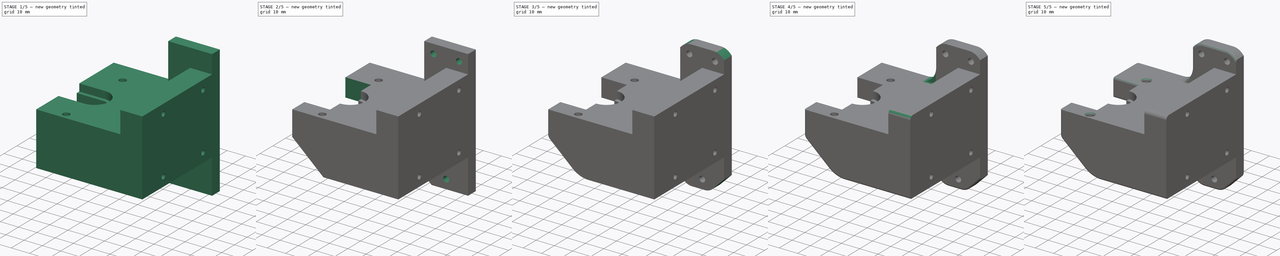
[diagram: build sequence overview — one tinted view per stage of 5, left to right]
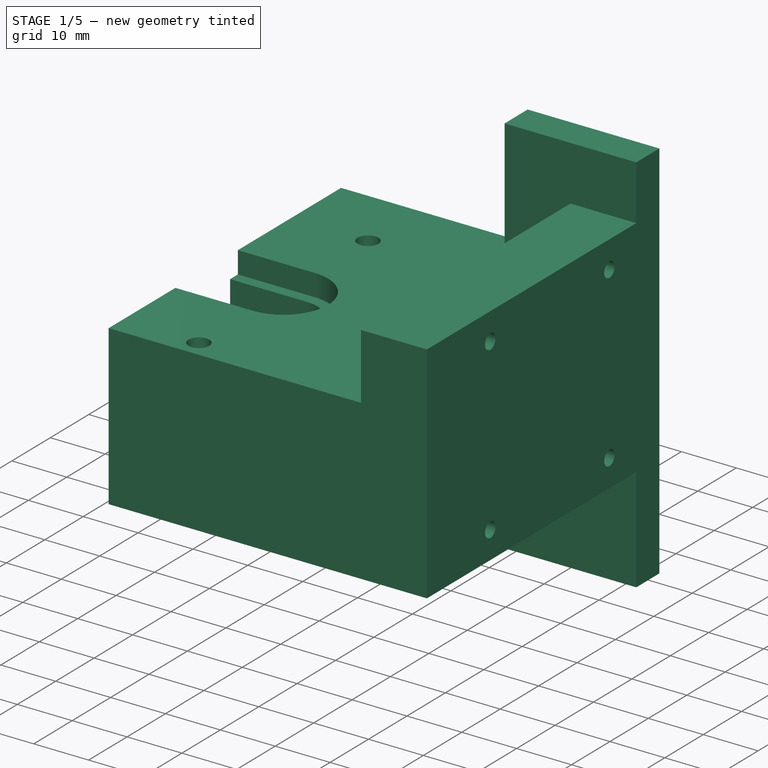
[diagram: stage 1 of 5 — iso view after this stage's code; geometry added in this stage tinted green]
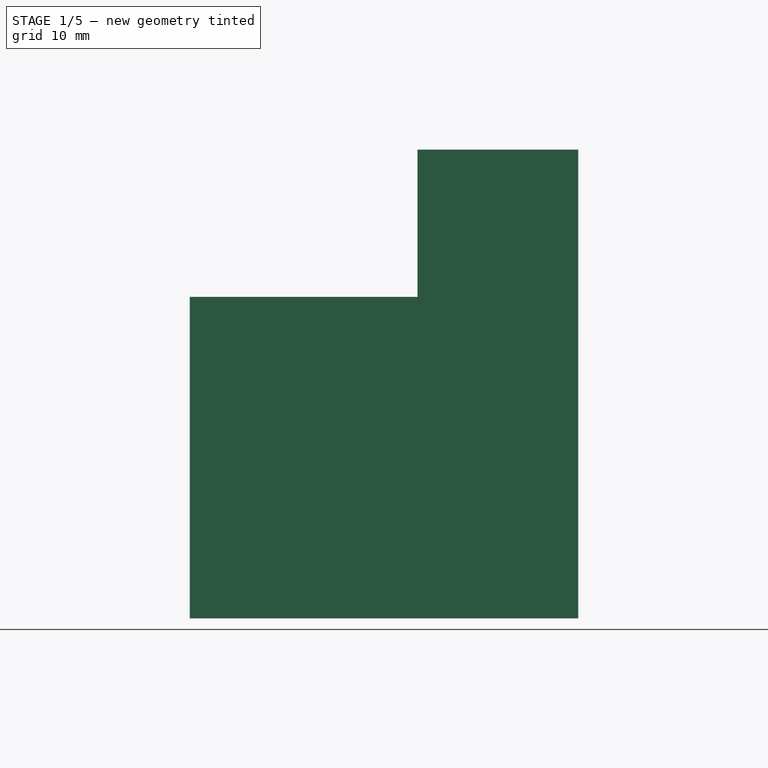
[diagram: stage 1 of 5 — front view after this stage's code; geometry added in this stage tinted green]
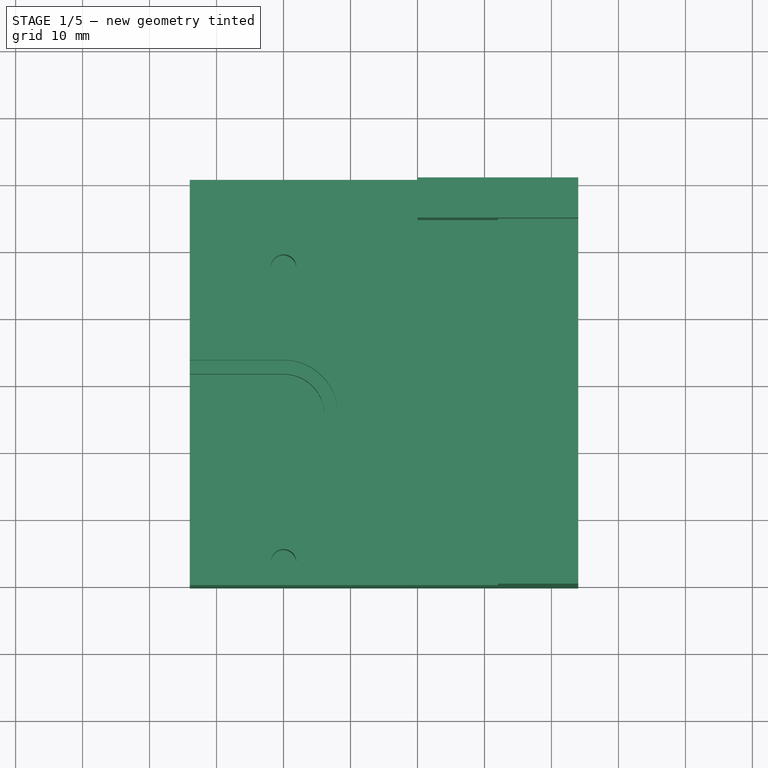
[diagram: stage 1 of 5 — top view after this stage's code; geometry added in this stage tinted green]
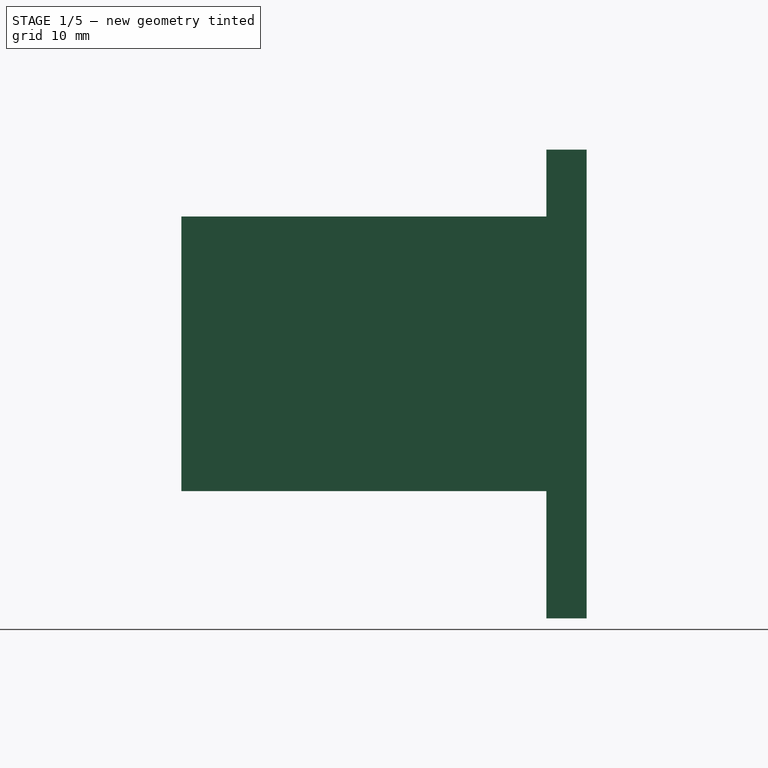
[diagram: stage 1 of 5 — right view after this stage's code; geometry added in this stage tinted green]
FCSTD DOCUMENT  (FreeCAD 0.19R)
Label: head9
License: All rights reserved
LicenseURL: http://en.wikipedia.org/wiki/All_rights_reserved
objects: PartDesign::Fillet×15, Sketcher::SketchObject×13, PartDesign::Pocket×12, PartDesign::Chamfer×5, PartDesign::Pad×1, PartDesign::Body×1
note: 80 computed .brp shape members not serialized (recipe doc carries the construction recipe); baked Part::Feature solids carry a one-line shape summary decoded from their .brp

FEATURE [Sketcher::SketchObject] Sketch
  FullyConstrained = true
  MapMode = 5
  Support = -> [XY_Plane]
  sketch-geometry (5):
    g0: LineSegment StartX=0 StartY=0 StartZ=0 EndX=44 EndY=0 EndZ=0
    g1: LineSegment StartX=-14 StartY=0 StartZ=0 EndX=0 EndY=0 EndZ=0
    g2: LineSegment StartX=-14 StartY=0 StartZ=0 EndX=-14 EndY=-60.5 EndZ=0
    g3: LineSegment StartX=-14 StartY=-60.5 StartZ=0 EndX=44 EndY=-60.5 EndZ=0
    g4: LineSegment StartX=44 StartY=-60.5 StartZ=0 EndX=44 EndY=0 EndZ=0
  constraints (14):
    c: Coincident(g-1,g0)
    c: PointOnObject(g0,g-1)
    c: PointOnObject(g1,g-1)
    c: Coincident(g1,g0)
    c: Coincident(g1,g2)
    c: Vertical(g2)
    c: Coincident(g2,g3)
    c: Horizontal(g3)
    c: Coincident(g3,g4)
    c: Coincident(g4,g0)
    c: Vertical(g4)
    c: Distance(g4) = 60.5
    c: DistanceX(g0) = 44
    c: DistanceX(g1) = -14
FEATURE [PartDesign::Pad] Pad
  Direction = (1,1,1)
  Length = 70
  Length2 = 100
  Profile = -> Sketch
  Type = 0
FEATURE [Sketcher::SketchObject] Sketch002
  FullyConstrained = false
  MapMode = 5
  Placement = pos=(0,0,70) rot=(0,0,1;0rad)
  Support = -> [Pad]
  sketch-geometry (6):
    g0: LineSegment StartX=32 StartY=-6 StartZ=0 EndX=32 EndY=-65.096 EndZ=0
    g1: LineSegment StartX=32 StartY=-65.096 StartZ=0 EndX=-40.7834 EndY=-65.096 EndZ=0
    g2: LineSegment StartX=-40.7834 StartY=-65.096 StartZ=0 EndX=-40.7834 EndY=12.9948 EndZ=0
    g3: LineSegment StartX=-40.7834 StartY=12.9948 StartZ=0 EndX=20 EndY=12.9948 EndZ=0
    g4: LineSegment StartX=20 StartY=12.9948 StartZ=0 EndX=20 EndY=-6 EndZ=0
    g5: LineSegment StartX=20 StartY=-6 StartZ=0 EndX=32 EndY=-6 EndZ=0
  constraints (15):
    c: Coincident(g0,g1)
    c: Coincident(g1,g2)
    c: Horizontal(g1)
    c: Vertical(g0)
    c: Vertical(g2)
    c: DistanceX(g0) = 32
    c: DistanceY(g0) = -6
    c: Coincident(g2,g3)
    c: Horizontal(g3)
    c: Coincident(g3,g4)
    c: Coincident(g4,g5)
    c: Coincident(g5,g0)
    c: Horizontal(g5)
    c: Vertical(g4)
    c: DistanceX(g3) = 20
FEATURE [PartDesign::Pocket] Pocket
  BaseFeature = -> Pad
  Length = 22
  Length2 = 100
  Profile = -> Sketch002
  Type = 0
FEATURE [Sketcher::SketchObject] Sketch008  label="pcbnotches"
  FullyConstrained = false
  MapMode = 5
  Placement = pos=(44,0,0) rot=(0.57735,0.57735,0.57735;2.0944rad)
  Support = -> [Pocket]
  sketch-geometry (8):
    g0: LineSegment StartX=-67.659 StartY=19 StartZ=0 EndX=-6 EndY=19 EndZ=0
    g1: LineSegment StartX=-6 StartY=19 StartZ=0 EndX=-6 EndY=-22.4626 EndZ=0
    g2: LineSegment StartX=-6 StartY=-22.4626 StartZ=0 EndX=-67.659 EndY=-22.4626 EndZ=0
    g3: LineSegment StartX=-67.659 StartY=-22.4626 StartZ=0 EndX=-67.659 EndY=19 EndZ=0
    g4: LineSegment StartX=-66.332 StartY=73.6841 StartZ=0 EndX=-6 EndY=73.6841 EndZ=0
    g5: LineSegment StartX=-6 StartY=73.6841 StartZ=0 EndX=-6 EndY=60 EndZ=0
    g6: LineSegment StartX=-6 StartY=60 StartZ=0 EndX=-66.332 EndY=60 EndZ=0
    g7: LineSegment StartX=-66.332 StartY=60 StartZ=0 EndX=-66.332 EndY=73.6841 EndZ=0
  constraints (20):
    c: Coincident(g0,g1)
    c: Coincident(g1,g2)
    c: Coincident(g2,g3)
    c: Coincident(g3,g0)
    c: Horizontal(g0)
    c: Horizontal(g2)
    c: Vertical(g1)
    c: Vertical(g3)
    c: DistanceY(g0) = 19
    c: Coincident(g4,g5)
    c: Coincident(g5,g6)
    c: Coincident(g6,g7)
    c: Coincident(g7,g4)
    c: Horizontal(g4)
    c: Horizontal(g6)
    c: Vertical(g5)
    c: Vertical(g7)
    c: DistanceX(g4) = -6
    c: DistanceY(g5) = 60
    c: DistanceX(g0) = -6
FEATURE [PartDesign::Pocket] Pocket001
  BaseFeature = -> Pocket
  Length = 76
  Length2 = 100
  Profile = -> Sketch008
  Type = 0
FEATURE [Sketcher::SketchObject] Sketch003  label="extredureholes"
  FullyConstrained = true
  MapMode = 5
  Placement = pos=(0,0,48) rot=(0,0,1;0rad)
  Support = -> [Pocket001]
  sketch-geometry (3):
    g0: Circle CenterX=0 CenterY=-13 CenterZ=0 NormalX=0 NormalY=0 NormalZ=1 AngleXU=0 Radius=1.9
    g1: Circle CenterX=8.179e-13 CenterY=-57 CenterZ=0 NormalX=0 NormalY=0 NormalZ=1 AngleXU=0 Radius=1.9
    g2: LineSegment StartX=-14.87 StartY=-35 StartZ=0 EndX=14.87 EndY=-35 EndZ=0
  constraints (8):
    c: Distance(g1,g0) = 44
    c: Diameter(g1) = 3.8
    c: PointOnObject(g0,g-2)
    c: Symmetric(g2,g2,g-2)
    c: Distance(g2) = 29.74
    c: Symmetric(g1,g0,g2)
    c: DistanceY(g2) = -35
    c: Diameter(g0) = 3.8
FEATURE [PartDesign::Pocket] Pocket002
  BaseFeature = -> Pocket001
  Length = 12
  Length2 = 100
  Profile = -> Sketch003
  Type = 0
FEATURE [Sketcher::SketchObject] Sketch004  label="topNotch"
  FullyConstrained = true
  MapMode = 5
  Placement = pos=(0,0,48) rot=(0,0,1;0rad)
  Support = -> [Pocket002]
  sketch-geometry (4):
    g0: ArcOfCircle CenterX=0 CenterY=-35 CenterZ=0 NormalX=0 NormalY=0 NormalZ=1 AngleXU=0 Radius=8.125 StartAngle=4.71239 EndAngle=7.85398
    g1: LineSegment StartX=-1.5e-15 StartY=-43.125 StartZ=0 EndX=-25 EndY=-43.125 EndZ=0
    g2: LineSegment StartX=-25 StartY=-43.125 StartZ=0 EndX=-25 EndY=-26.875 EndZ=0
    g3: LineSegment StartX=-25 StartY=-26.875 StartZ=0 EndX=-2.629e-13 EndY=-26.875 EndZ=0
  constraints (11):
    c: PointOnObject(g0,g-2)
    c: Diameter(g0) = 16.25
    c: DistanceY(g0) = -35
    c: Coincident(g1,g2)
    c: Coincident(g2,g3)
    c: Distance(g3) = 25
    c: Tangent(g3,g0) = 1.5708
    c: Tangent(g1,g0) = 1.5708
    c: Horizontal(g3)
    c: Horizontal(g1)
    c: Vertical(g2)
FEATURE [PartDesign::Pocket] Pocket003
  BaseFeature = -> Pocket002
  Length = 4
  Length2 = 100
  Profile = -> Sketch004
  Type = 0
FEATURE [Sketcher::SketchObject] Sketch018  label="innergroove"
  FullyConstrained = true
  MapMode = 5
  Placement = pos=(0,0,44) rot=(0,0,1;0rad)
  Support = -> [Pocket003]
  sketch-geometry (4):
    g0: ArcOfCircle CenterX=0 CenterY=-35 CenterZ=0 NormalX=0 NormalY=0 NormalZ=1 AngleXU=0 Radius=6.1 StartAngle=4.71239 EndAngle=7.85398
    g1: LineSegment StartX=-1.1e-15 StartY=-41.1 StartZ=0 EndX=-50 EndY=-41.1 EndZ=0
    g2: LineSegment StartX=1.9e-15 StartY=-28.9 StartZ=0 EndX=-50 EndY=-28.9 EndZ=0
    g3: LineSegment StartX=-50 StartY=-41.1 StartZ=0 EndX=-50 EndY=-28.9 EndZ=0
  constraints (11):
    c: PointOnObject(g0,g-2)
    c: Coincident(g3,g1)
    c: Coincident(g3,g2)
    c: Tangent(g1,g0) = 1.5708
    c: Tangent(g2,g0) = -1.5708
    c: DistanceY(g0) = -35
    c: Diameter(g0) = 12.2
    c: Distance(g1) = 50
    c: Vertical(g3)
    c: Horizontal(g1)
    c: Horizontal(g2)
FEATURE [PartDesign::Pocket] Pocket004
  BaseFeature = -> Pocket003
  Length = 6
  Length2 = 100
  Profile = -> Sketch018
  Type = 0
FEATURE [Sketcher::SketchObject] Sketch009  label="PCBholes"
  FullyConstrained = true
  MapMode = 5
  Placement = pos=(44,0,0) rot=(0.57735,0.57735,0.57735;2.0944rad)
  Support = -> [Pocket004]
  sketch-geometry (5):
    g0: Circle CenterX=-44 CenterY=55 CenterZ=0 NormalX=0 NormalY=0 NormalZ=1 AngleXU=0 Radius=1.35
    g1: Circle CenterX=-13 CenterY=24 CenterZ=0 NormalX=0 NormalY=0 NormalZ=1 AngleXU=0 Radius=1.35
    g2: LineSegment StartX=-44 StartY=55 StartZ=0 EndX=-13 EndY=24 EndZ=0
    g3: Circle CenterX=-13 CenterY=55 CenterZ=0 NormalX=0 NormalY=0 NormalZ=1 AngleXU=0 Radius=1.35
    g4: Circle CenterX=-44 CenterY=24 CenterZ=0 NormalX=0 NormalY=0 NormalZ=1 AngleXU=0 Radius=1.35
  constraints (14):
    c: Coincident(g2,g0)
    c: Coincident(g2,g1)
    c: Angle(g2) = -0.785398
    c: DistanceX(g1) = -13
    c: DistanceY(g1) = 24
    c: Diameter(g4) = 2.7
    c: Equal(g4,g0)
    c: Equal(g4,g3)
    c: Equal(g4,g1)
    c: DistanceY(g4,g0) = 31
    c: DistanceX(g0,g3) = 31
    c: DistanceX(g4,g1) = 31
    c: DistanceY(g4) = 24
    c: DistanceY(g1,g3) = 31
FEATURE [PartDesign::Pocket] Pocket005
  BaseFeature = -> Pocket004
  Length = 10
  Length2 = 100
  Profile = -> Sketch009
  Type = 0
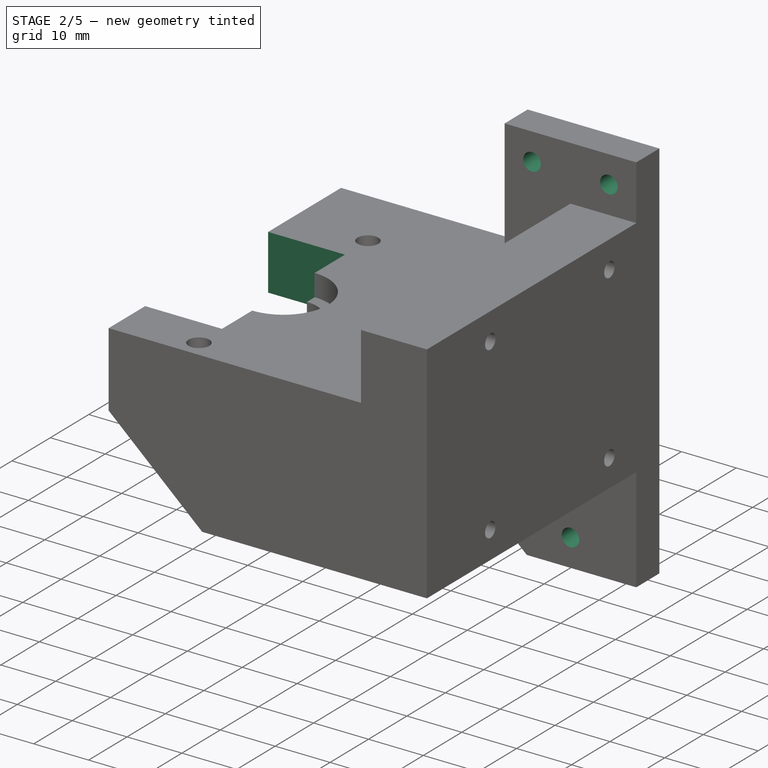
[diagram: stage 2 of 5 — iso view after this stage's code; geometry added in this stage tinted green]
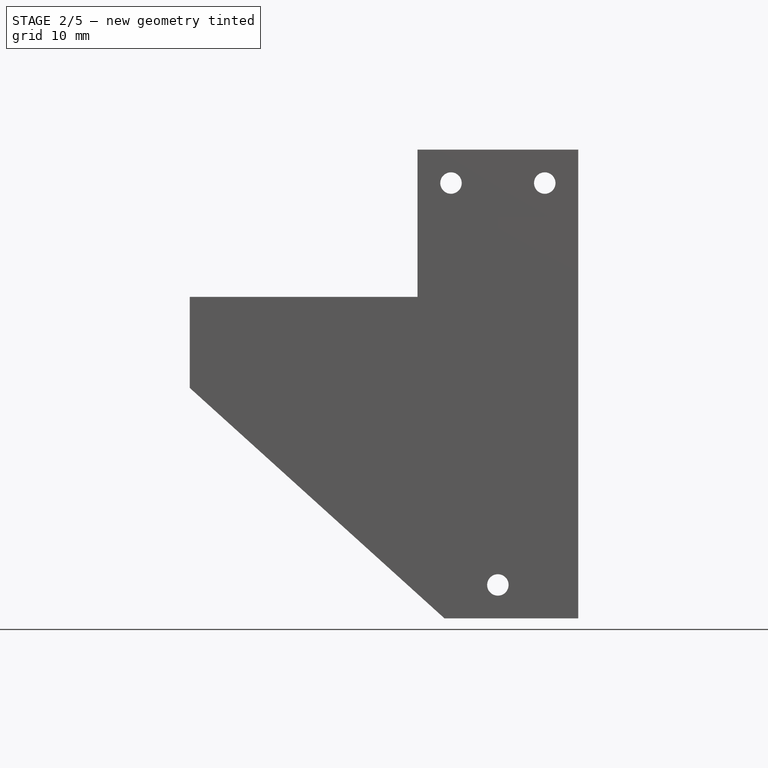
[diagram: stage 2 of 5 — front view after this stage's code; geometry added in this stage tinted green]
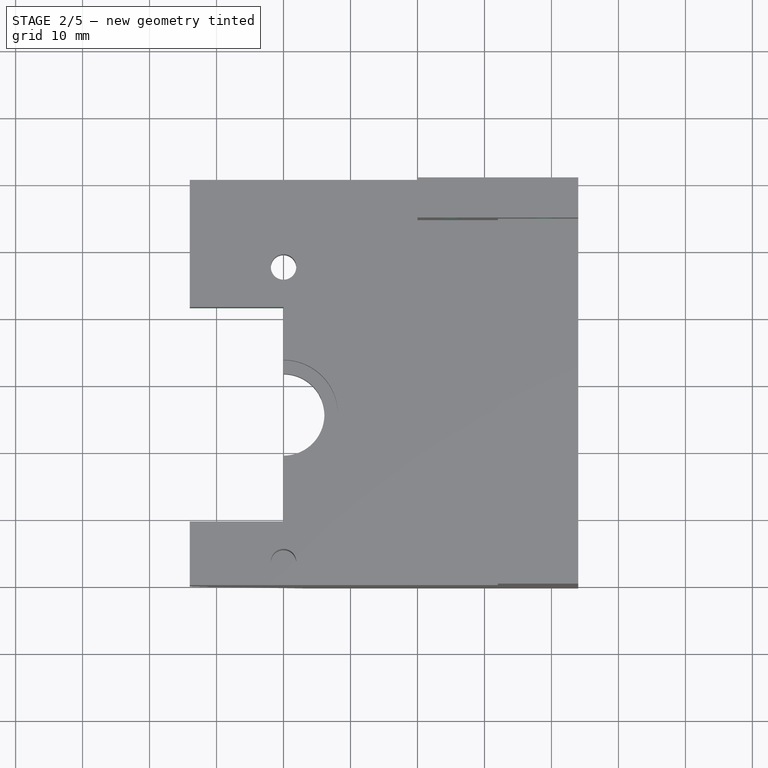
[diagram: stage 2 of 5 — top view after this stage's code; geometry added in this stage tinted green]
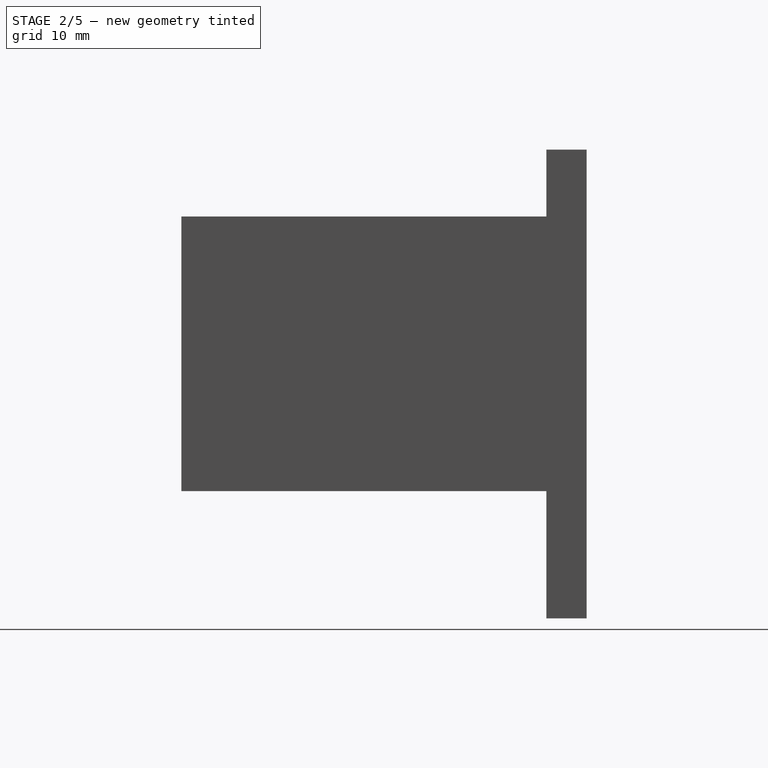
[diagram: stage 2 of 5 — right view after this stage's code; geometry added in this stage tinted green]
FEATURE [Sketcher::SketchObject] Sketch030
  FullyConstrained = false
  MapMode = 5
  Placement = pos=(0,0,48) rot=(0,0,1;0rad)
  Support = -> [Pocket005]
  sketch-geometry (5):
    g0: LineSegment StartX=-28.769 StartY=-19 StartZ=0 EndX=0 EndY=-19 EndZ=0
    g1: LineSegment StartX=0 StartY=-19 StartZ=0 EndX=0 EndY=-51 EndZ=0
    g2: LineSegment StartX=0 StartY=-51 StartZ=0 EndX=-28.769 EndY=-51 EndZ=0
    g3: LineSegment StartX=-28.769 StartY=-51 StartZ=0 EndX=-28.769 EndY=-19 EndZ=0
    g4: LineSegment StartX=-7.77915 StartY=-35 StartZ=0 EndX=15.2351 EndY=-35 EndZ=0
  constraints (12):
    c: Coincident(g0,g1)
    c: Coincident(g1,g2)
    c: Coincident(g2,g3)
    c: Coincident(g3,g0)
    c: Horizontal(g0)
    c: Horizontal(g2)
    c: Vertical(g1)
    c: Vertical(g3)
    c: PointOnObject(g1,g-2)
    c: Distance(g1) = 32
    c: Symmetric(g0,g1,g4)
    c: DistanceY(g4) = -35
FEATURE [PartDesign::Pocket] Pocket006
  BaseFeature = -> Pocket005
  Length = 5
  Length2 = 100
  Profile = -> Sketch030
  Type = 1
FEATURE [Sketcher::SketchObject] Sketch031
  FullyConstrained = false
  MapMode = 5
  Placement = pos=(-14,0,0) rot=(0.57735,-0.57735,-0.57735;2.0944rad)
  Support = -> [Pocket006]
  sketch-geometry (4):
    g0: LineSegment StartX=6.1 StartY=38 StartZ=0 EndX=52.7193 EndY=38 EndZ=0
    g1: LineSegment StartX=52.7193 StartY=38 StartZ=0 EndX=52.7193 EndY=2.95128 EndZ=0
    g2: LineSegment StartX=52.7193 StartY=2.95128 StartZ=0 EndX=6.1 EndY=2.95128 EndZ=0
    g3: LineSegment StartX=6.1 StartY=2.95128 StartZ=0 EndX=6.1 EndY=38 EndZ=0
  constraints (10):
    c: Coincident(g0,g1)
    c: Coincident(g1,g2)
    c: Coincident(g2,g3)
    c: Coincident(g3,g0)
    c: Horizontal(g0)
    c: Horizontal(g2)
    c: Vertical(g1)
    c: Vertical(g3)
    c: DistanceX(g0) = 6.1
    c: DistanceY(g0) = 38
FEATURE [PartDesign::Pocket] Pocket007
  BaseFeature = -> Pocket006
  Length = 36
  Length2 = 100
  Profile = -> Sketch031
  Type = 0
FEATURE [Sketcher::SketchObject] Sketch032
  ExternalGeometry = -> [Pocket007]
  FullyConstrained = true
  MapMode = 5
  Placement = pos=(-14,0,0) rot=(0.57735,-0.57735,-0.57735;2.0944rad)
  Support = -> [Pocket007]
  sketch-geometry (2):
    g0: Circle CenterX=4 CenterY=44 CenterZ=0 NormalX=0 NormalY=0 NormalZ=1 AngleXU=0 Radius=1.9
    g1: Circle CenterX=55 CenterY=44 CenterZ=0 NormalX=0 NormalY=0 NormalZ=1 AngleXU=0 Radius=1.9
  constraints (6):
    c: Diameter(g0) = 3.8
    c: DistanceX(g0) = 4
    c: DistanceY(g0) = 44
    c: Diameter(g1) = 3.8
    c: DistanceY(g1) = 44
    c: DistanceX(g1) = 55
FEATURE [PartDesign::Pocket] Pocket008
  BaseFeature = -> Pocket007
  Length = 10
  Length2 = 100
  Profile = -> Sketch032
  Type = 0
FEATURE [Sketcher::SketchObject] Sketch013  label="groovescrews"
  FullyConstrained = false
  MapMode = 5
  Placement = pos=(0,0,0) rot=(0.57735,-0.57735,-0.57735;2.0944rad)
  Support = -> [Pocket008]
  sketch-geometry (3):
    g0: Circle CenterX=24 CenterY=42 CenterZ=0 NormalX=0 NormalY=0 NormalZ=1 AngleXU=0 Radius=1.9
    g1: Circle CenterX=46 CenterY=42 CenterZ=0 NormalX=0 NormalY=0 NormalZ=1 AngleXU=0 Radius=1.9
    g2: LineSegment StartX=35 StartY=87.2769 StartZ=0 EndX=35 EndY=69.6255 EndZ=0
  constraints (6):
    c: Distance(g1,g0) = 22
    c: Diameter(g1) = 3.8
    c: Equal(g1,g0)
    c: Vertical(g2)
    c: Symmetric(g1,g0,g2)
    c: DistanceX(g2) = 35
FEATURE [PartDesign::Pocket] Pocket009
  BaseFeature = -> Pocket008
  Length = 16
  Length2 = 100
  Profile = -> Sketch013
  Type = 0
FEATURE [Sketcher::SketchObject] Sketch010  label="mountholes"
  FullyConstrained = true
  MapMode = 5
  Placement = pos=(0,0,0) rot=(0,0.707107,0.707107;3.14159rad)
  Support = -> [Pocket009]
  sketch-geometry (3):
    g0: Circle CenterX=-32 CenterY=5 CenterZ=0 NormalX=0 NormalY=0 NormalZ=1 AngleXU=0 Radius=1.6
    g1: Circle CenterX=-39 CenterY=65 CenterZ=0 NormalX=0 NormalY=0 NormalZ=1 AngleXU=0 Radius=1.6
    g2: Circle CenterX=-25 CenterY=65 CenterZ=0 NormalX=0 NormalY=0 NormalZ=1 AngleXU=0 Radius=1.6
  constraints (9):
    c: Diameter(g0) = 3.2
    c: Equal(g0,g2)
    c: Equal(g0,g1)
    c: DistanceX(g0) = -32
    c: Distance(g1,g2) = 14
    c: DistanceX(g2) = -25
    c: DistanceY(g0) = 5
    c: DistanceY(g2) = 65
    c: DistanceY(g1) = 65
FEATURE [PartDesign::Pocket] Pocket010
  BaseFeature = -> Pocket009
  Length = 7
  Length2 = 100
  Profile = -> Sketch010
  Type = 0
FEATURE [Sketcher::SketchObject] Sketch033  label="ANgler"
  FullyConstrained = false
  MapMode = 5
  Placement = pos=(0,0,0) rot=(0,0.707107,0.707107;3.14159rad)
  Support = -> [Pocket010]
  sketch-geometry (3):
    g0: LineSegment StartX=21.9958 StartY=41.6537 StartZ=0 EndX=-34.9081 EndY=-9.83073 EndZ=0
    g1: LineSegment StartX=21.9958 StartY=41.6537 StartZ=0 EndX=21.9958 EndY=-12.4114 EndZ=0
    g2: LineSegment StartX=21.9958 StartY=-12.4114 StartZ=0 EndX=-34.9081 EndY=-9.83073 EndZ=0
  constraints (4):
    c: Coincident(g0,g1)
    c: Vertical(g1)
    c: Coincident(g1,g2)
    c: Coincident(g2,g0)
FEATURE [PartDesign::Pocket] Pocket011
  BaseFeature = -> Pocket010
  Length = 5
  Length2 = 100
  Profile = -> Sketch033
  Type = 1
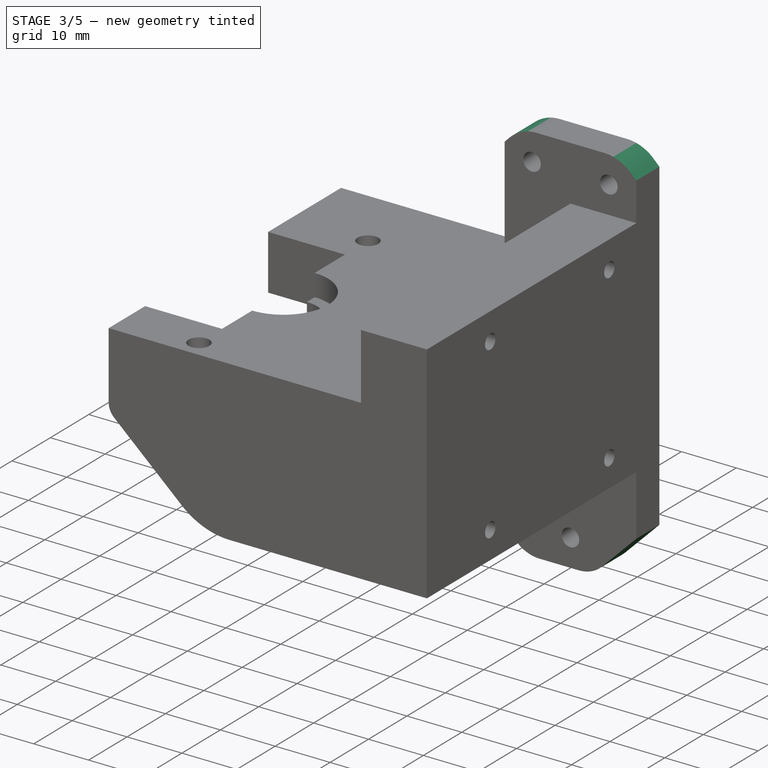
[diagram: stage 3 of 5 — iso view after this stage's code; geometry added in this stage tinted green]
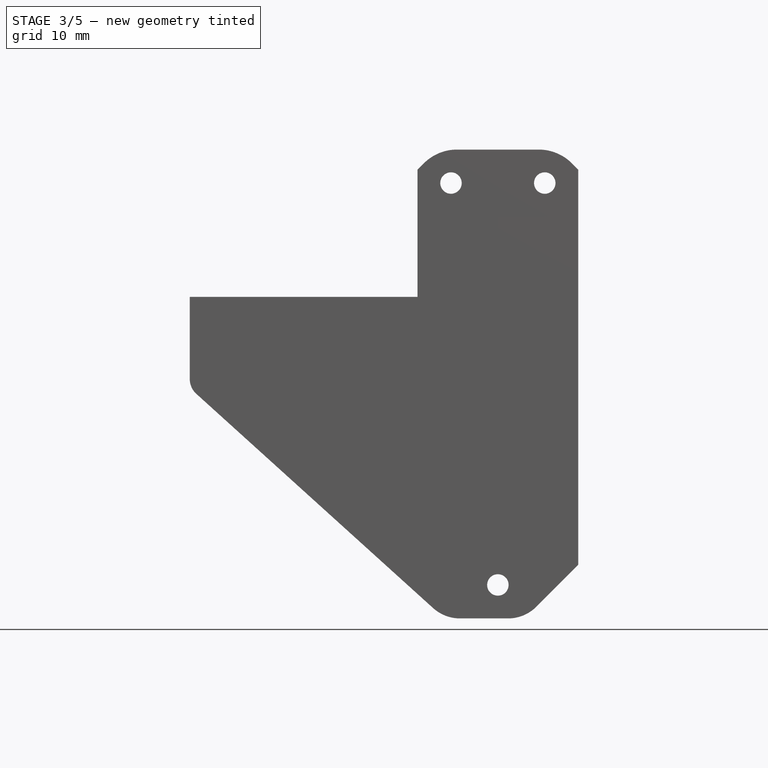
[diagram: stage 3 of 5 — front view after this stage's code; geometry added in this stage tinted green]
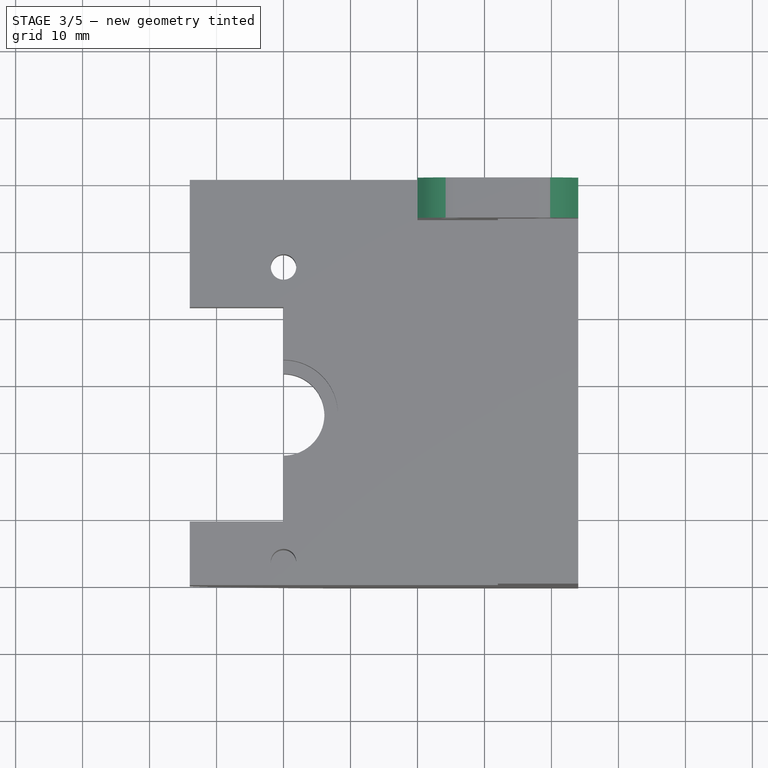
[diagram: stage 3 of 5 — top view after this stage's code; geometry added in this stage tinted green]
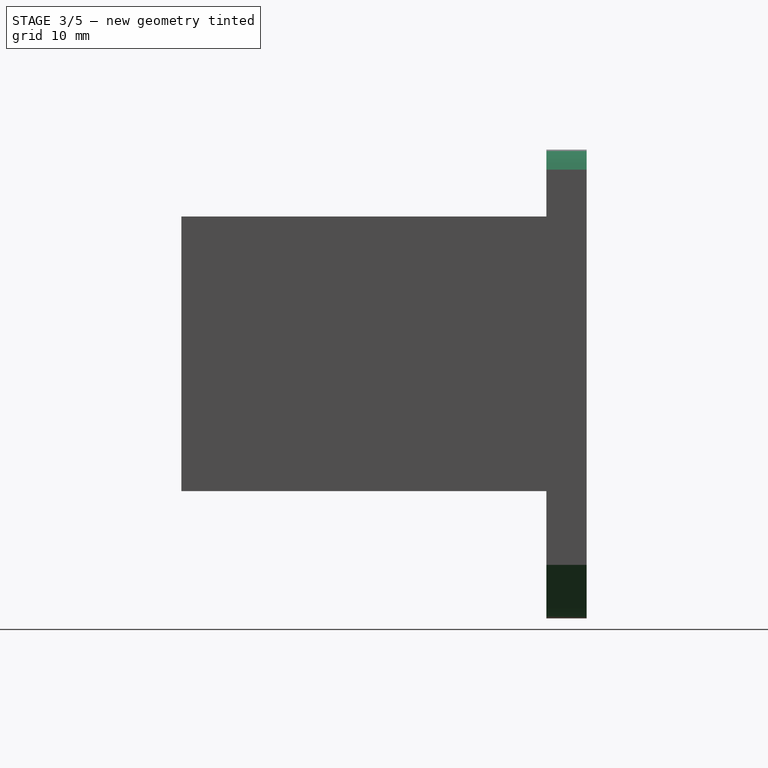
[diagram: stage 3 of 5 — right view after this stage's code; geometry added in this stage tinted green]
FEATURE [PartDesign::Chamfer] Chamfer
  Angle = 45
  Base = -> Pocket011 [Edge57]
  BaseFeature = -> Pocket011
  ChamferType = 0
  FlipDirection = false
  Size = 15
  Size2 = 1
  SupportTransform = false
FEATURE [PartDesign::Chamfer] Chamfer001
  Angle = 45
  Base = -> Chamfer [Edge32]
  BaseFeature = -> Chamfer
  ChamferType = 0
  FlipDirection = false
  Size = 8
  Size2 = 1
  SupportTransform = false
FEATURE [PartDesign::Chamfer] Chamfer002
  Angle = 45
  Base = -> Chamfer001 [Edge11,Edge47]
  BaseFeature = -> Chamfer001
  ChamferType = 0
  FlipDirection = false
  Size = 3
  Size2 = 1
  SupportTransform = false
FEATURE [PartDesign::Fillet] Fillet
  Base = -> Chamfer002 [Edge26,Edge60]
  BaseFeature = -> Chamfer002
  Radius = 7
  SupportTransform = false
FEATURE [PartDesign::Fillet] Fillet001
  Base = -> Fillet [Edge39,Edge35]
  BaseFeature = -> Fillet
  Radius = 6
  SupportTransform = false
FEATURE [PartDesign::Fillet] Fillet002
  Base = -> Fillet001 [Edge86]
  BaseFeature = -> Fillet001
  Radius = 13
  SupportTransform = false
FEATURE [PartDesign::Fillet] Fillet003
  Base = -> Fillet002 [Edge51,Edge50]
  BaseFeature = -> Fillet002
  Radius = 3
  SupportTransform = false
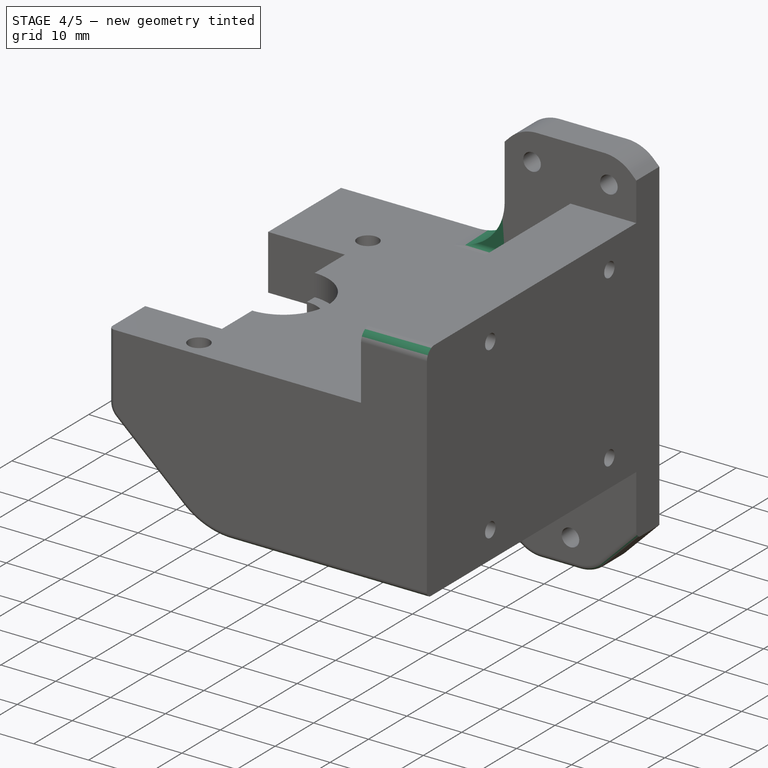
[diagram: stage 4 of 5 — iso view after this stage's code; geometry added in this stage tinted green]
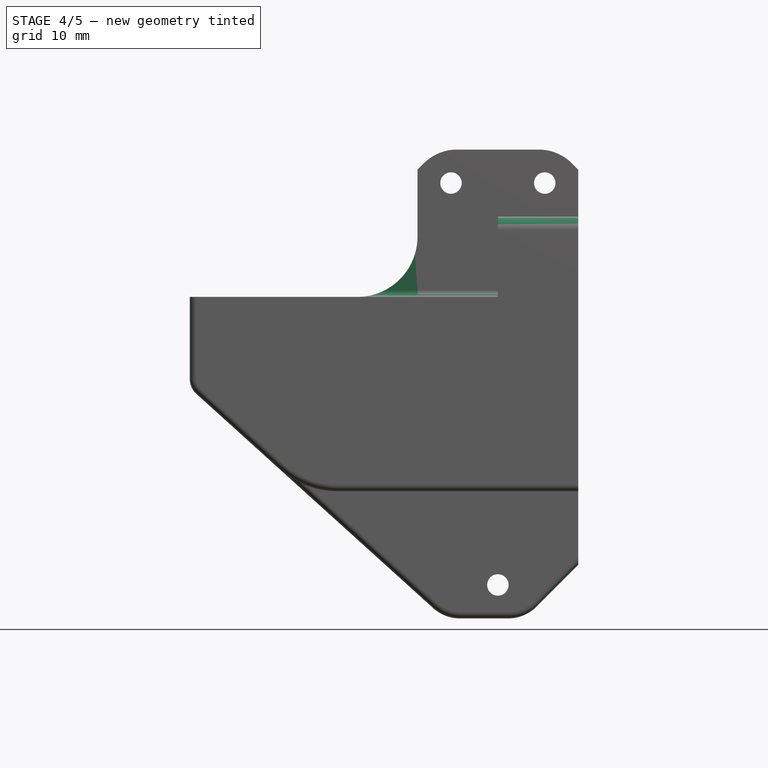
[diagram: stage 4 of 5 — front view after this stage's code; geometry added in this stage tinted green]
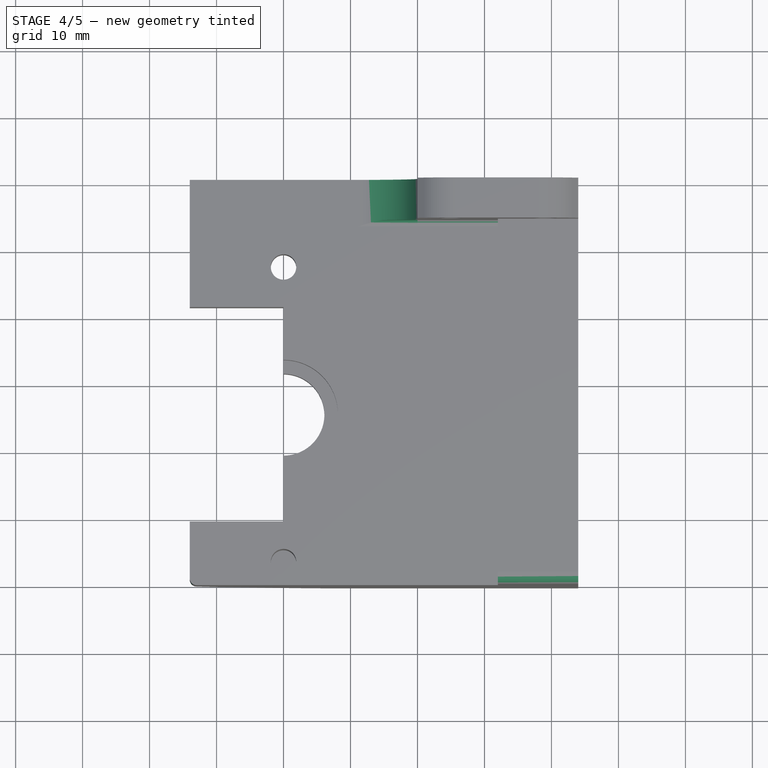
[diagram: stage 4 of 5 — top view after this stage's code; geometry added in this stage tinted green]
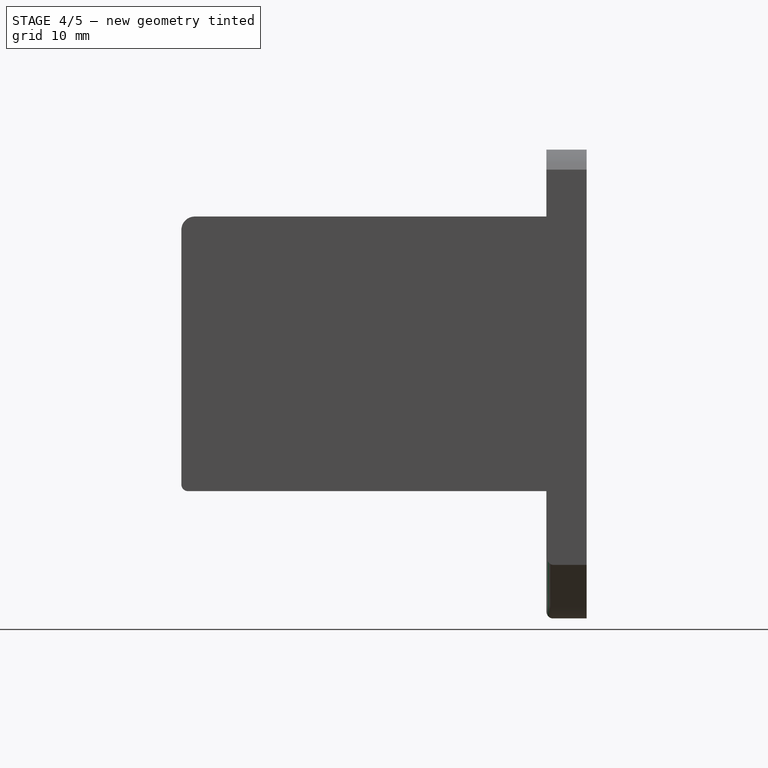
[diagram: stage 4 of 5 — right view after this stage's code; geometry added in this stage tinted green]
FEATURE [PartDesign::Fillet] Fillet004
  Base = -> Fillet003 [Edge55]
  BaseFeature = -> Fillet003
  Radius = 9
  SupportTransform = false
FEATURE [PartDesign::Fillet] Fillet005
  Base = -> Fillet004 [Edge6]
  BaseFeature = -> Fillet004
  Radius = 1
  SupportTransform = false
FEATURE [PartDesign::Fillet] Fillet006
  Base = -> Fillet005 [Edge30]
  BaseFeature = -> Fillet005
  Radius = 2
  SupportTransform = false
FEATURE [PartDesign::Fillet] Fillet007
  Base = -> Fillet006 [Edge13]
  BaseFeature = -> Fillet006
  Radius = 1
  SupportTransform = false
FEATURE [PartDesign::Fillet] Fillet008
  Base = -> Fillet007 [Edge67]
  BaseFeature = -> Fillet007
  Radius = 1
  SupportTransform = false
FEATURE [PartDesign::Fillet] Fillet009
  Base = -> Fillet008 [Edge91]
  BaseFeature = -> Fillet008
  Radius = 1
  SupportTransform = false
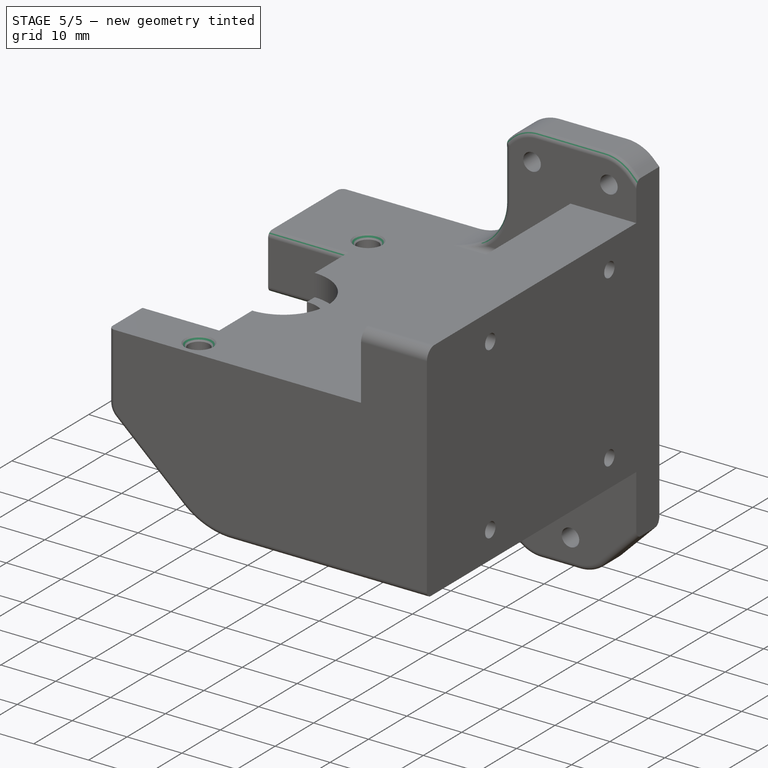
[diagram: stage 5 of 5 — iso view after this stage's code; geometry added in this stage tinted green]
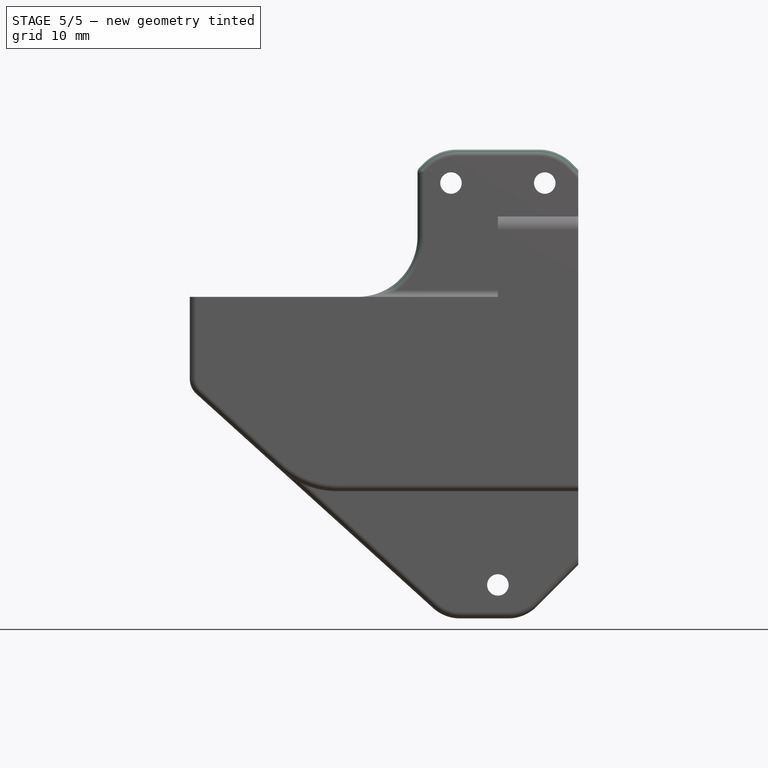
[diagram: stage 5 of 5 — front view after this stage's code; geometry added in this stage tinted green]
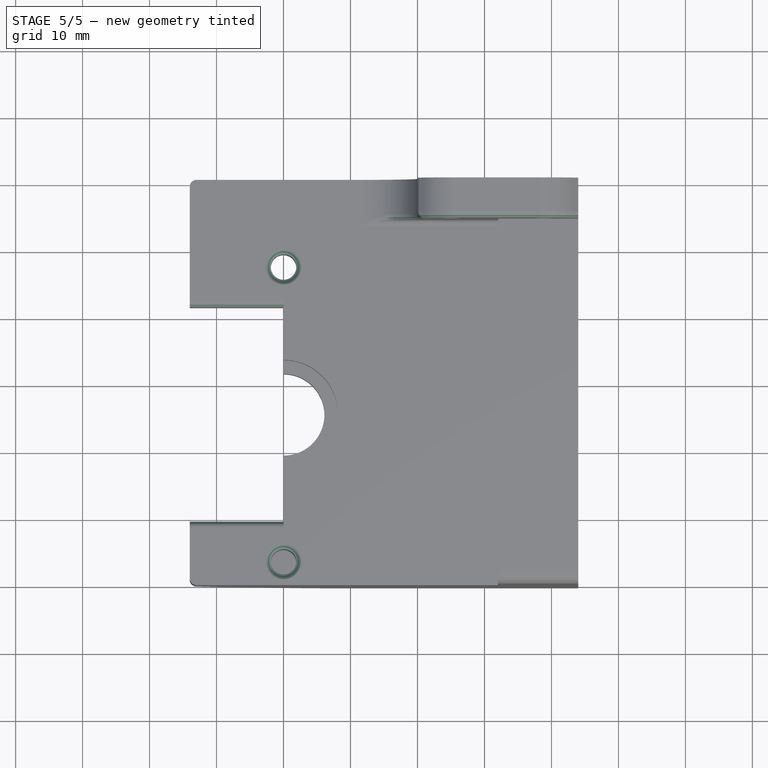
[diagram: stage 5 of 5 — top view after this stage's code; geometry added in this stage tinted green]
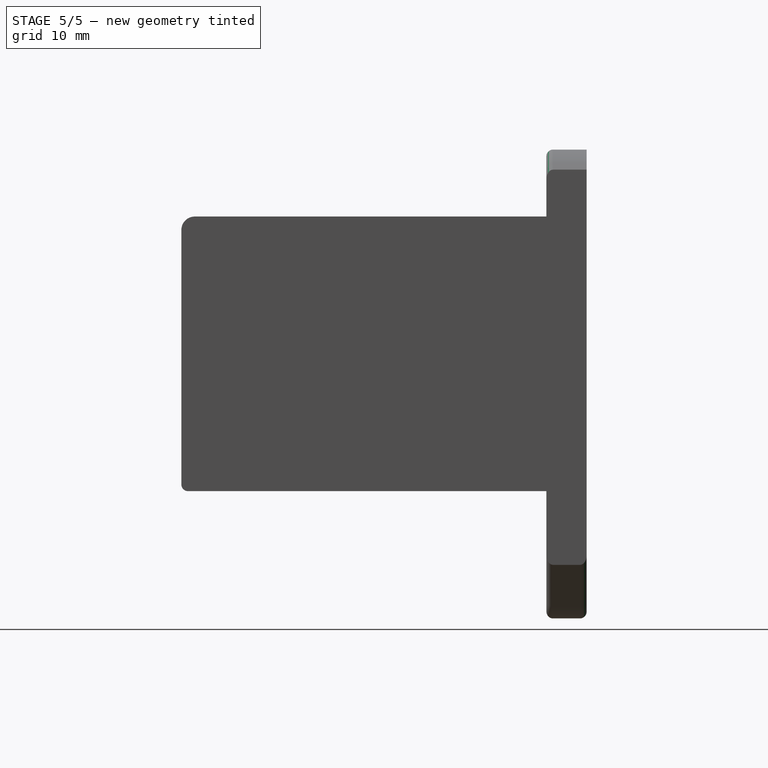
[diagram: stage 5 of 5 — right view after this stage's code; geometry added in this stage tinted green]
FEATURE [PartDesign::Fillet] Fillet010
  Base = -> Fillet009 [Edge18]
  BaseFeature = -> Fillet009
  Radius = 1
  SupportTransform = false
FEATURE [PartDesign::Fillet] Fillet011
  Base = -> Fillet010 [Edge127,Edge118,Edge114,Edge123]
  BaseFeature = -> Fillet010
  Radius = 1
  SupportTransform = false
FEATURE [PartDesign::Fillet] Fillet012
  Base = -> Fillet011 [Edge206,Edge141,Edge49]
  BaseFeature = -> Fillet011
  Radius = 2
  SupportTransform = false
FEATURE [PartDesign::Fillet] Fillet013
  Base = -> Fillet012 [Edge213]
  BaseFeature = -> Fillet012
  Radius = 1
  SupportTransform = false
FEATURE [PartDesign::Fillet] Fillet014
  Base = -> Fillet013 [Edge124]
  BaseFeature = -> Fillet013
  Radius = 1
  SupportTransform = false
FEATURE [PartDesign::Chamfer] Chamfer003
  Angle = 45
  Base = -> Fillet014 [Edge50,Edge51]
  BaseFeature = -> Fillet014
  ChamferType = 0
  FlipDirection = false
  Size = 0.7
  Size2 = 1
  SupportTransform = false
FEATURE [PartDesign::Chamfer] Chamfer004
  Angle = 45
  Base = -> Chamfer003 [Edge66,Edge43]
  BaseFeature = -> Chamfer003
  ChamferType = 0
  FlipDirection = false
  Size = 0.7
  Size2 = 1
  SupportTransform = false
FEATURE [PartDesign::Body] Body
  Group = -> [Sketch,Pad,Sketch002,Sketch003,Sketch004,Sketch008,Sketch009,Sketch010,Sketch013,Sketch018,Pocket,Pocket001,Pocket002,Pocket003,Pocket004,Pocket005,Sketch030,Pocket006,Sketch031,Pocket007,Sketch032,Pocket008,Pocket009,Pocket010,Sketch033,Pocket011,Chamfer,Chamfer001,Chamfer002,Fillet,Fillet001,Fillet002,Fillet003,Fillet004,Fillet005,Fillet006,Fillet007,Fillet008,Fillet009,Fillet010,Fillet011,+5 more]
  Origin = -> Origin
  Tip = -> Chamfer004
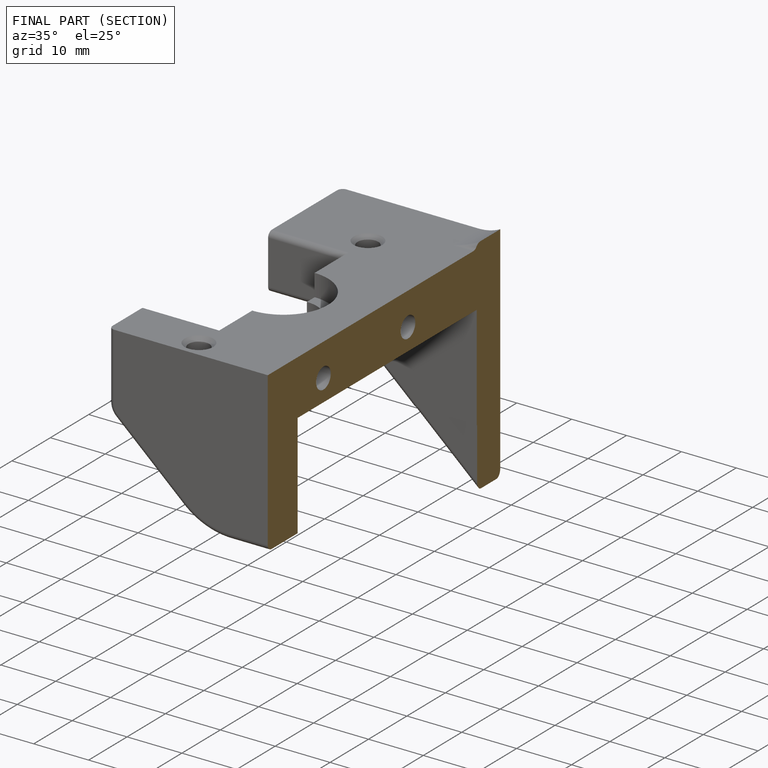
[diagram: finished part — half-section view (interior)]
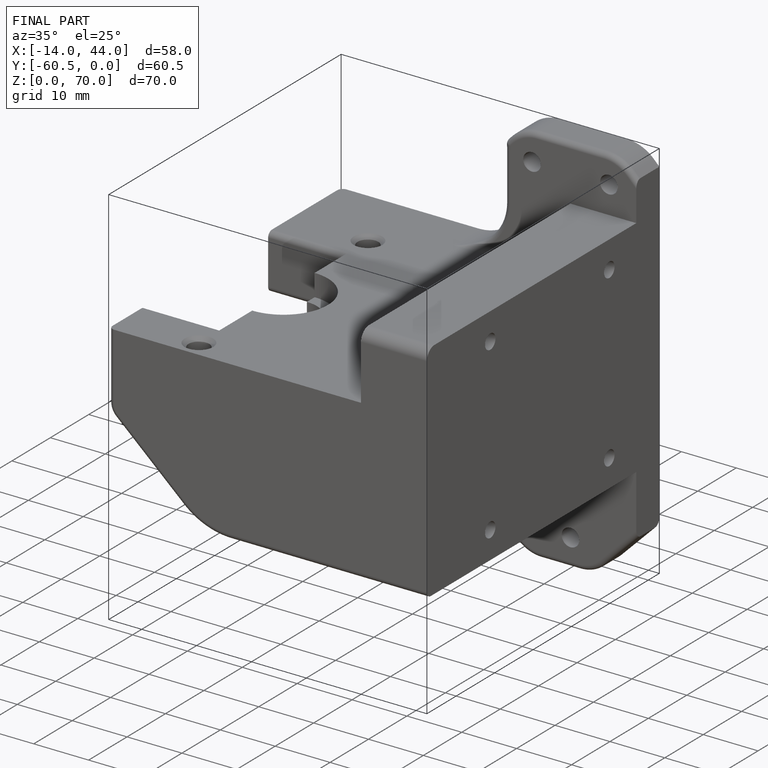
[diagram: finished part — iso view with bounding-box wireframe]
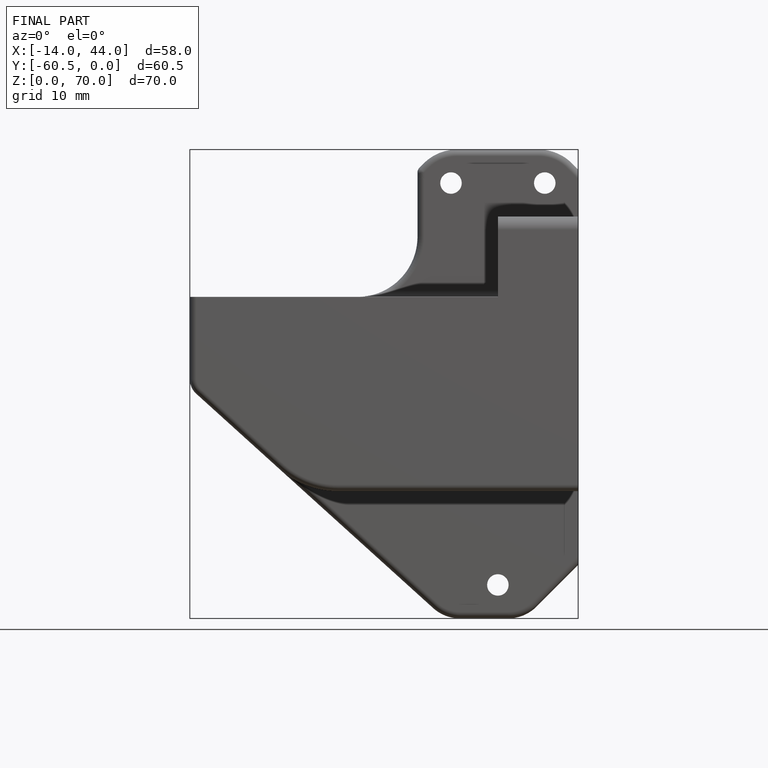
[diagram: finished part — front view with bounding-box wireframe]
